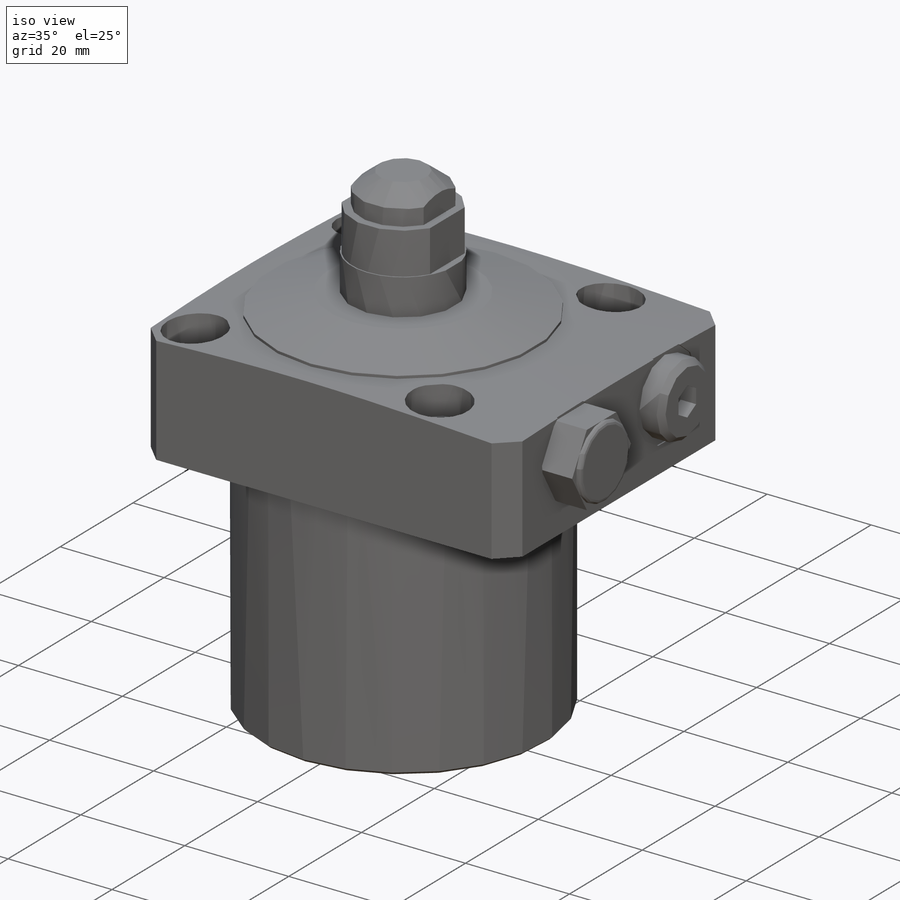
[diagram: iso view]
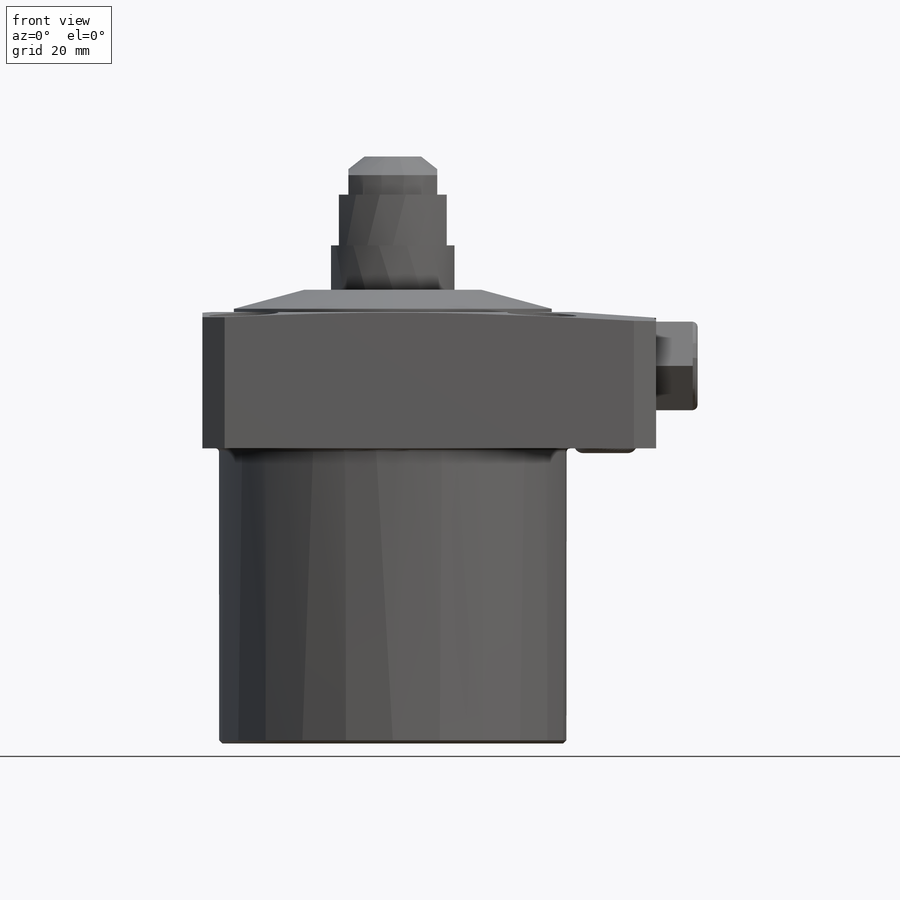
[diagram: front view]
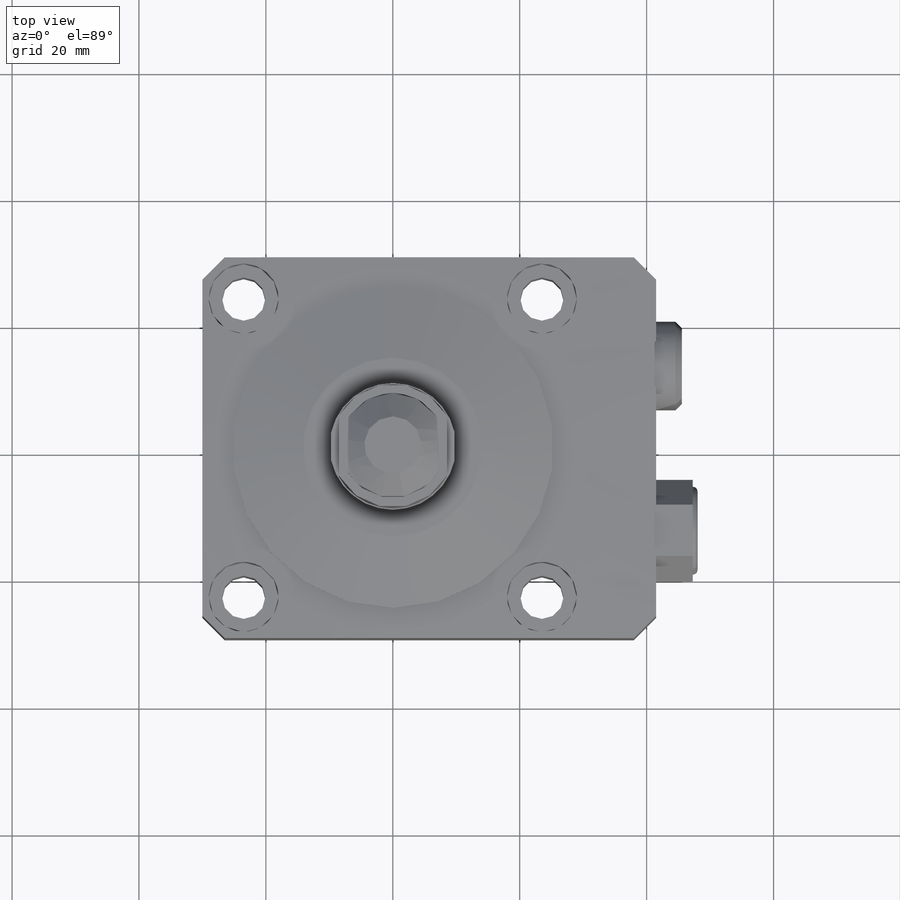
[diagram: top view]
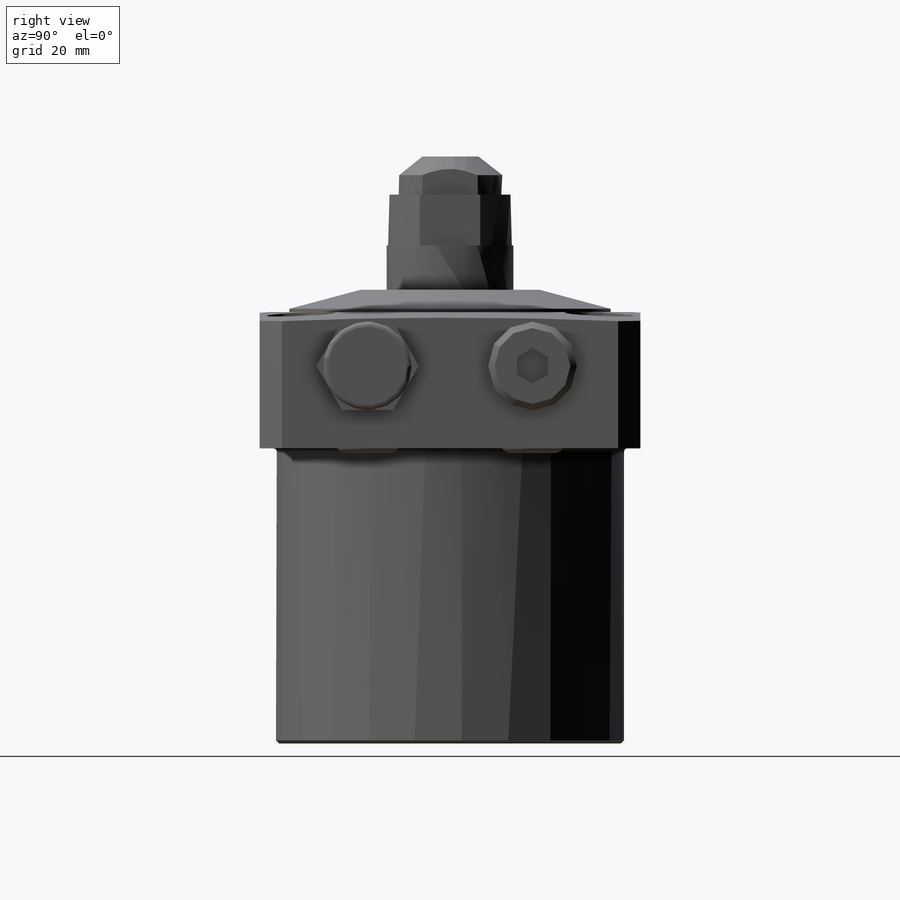
[diagram: right view]
SOLIDWORKS PART (.sldprt)
format: sldprt  version: not decoded by parser v0  size: 603,136 bytes
history: native  units: mm
features: sketch x16, revolve x5, cut_extrude x5, chamfer x3, cut_revolve x3, plane x2, pattern_linear x2, material x1, hole x1, pattern_circular x1, fillet x1, extrude x1 (+11 scaffold rows collapsed)
feature tree (52):
  scaffold x11  (default folders/planes/origin — collapsed)
  material  "Alloy Steel"
  sketch  "Sketch1"  dims[c1.D1=34.25mm c1.D2=9.4mm c1.D3=2.75mm c1.D4=34.0mm c1.D5=~3.996569mm c2.D5=45.0deg c2.D6=35.85mm c2.D7=68.0mm c2.D8=~11.557433mm c3.D8=4.0deg c3.D9=57.0mm c3.D10=54.85mm c3.D11=8.75mm c3.D12=33.75mm c3.D13=1.5mm c3.D2=46.5mm c3.D3=52.5mm]
  revolve  "Revolve1"  Angle=360deg
  sketch  "Sketch2"  dims[D1=60.0mm D2=30.0mm D3=71.5mm]
  cut_extrude  "Cut-Extrude1"  [1 undecoded]
  chamfer  "Chamfer2"  Distance=3.5mm Angle=45deg
  sketch  "Sketch4"  dims[c1.D1=104.0mm c1.D2=6.0mm c1.D3=16.5mm c1.D4=19.96mm c1.D5=19.5mm c1.D6=14.0mm c2.D1=90.0mm c2.D7=90.0deg c3.D1=46.0mm]
  revolve  "Revolve2"  Angle=360deg
  chamfer  "Chamfer1"  Distance=2.935mm Angle=51.98deg
  sketch  "Sketch5"  dims[D1=14.0mm]
  cut_extrude  "Cut-Extrude2"  [1 undecoded]
  sketch  "Sketch6"  dims[D1=17.0mm]
  cut_extrude  "Cut-Extrude3"  [1 undecoded]
  sketch  "Sketch10"  dims[D1=11.0mm D2=23.5mm D3=23.5mm]
  cut_extrude  "Cut-Extrude4"  Depth=16mm
  hole  "Ø5.5 (5.5) Diameter Hole1"  Diameter=6.8mm Depth=62.5mm
  sketch  "3DSketch1"
  sketch  "Sketch11"  dims[hole-wizard template sketch: 59 standard entries collapsed; hole parameters kept: c18.Thru Hole Dia.=6.8mm c18.Thru Hole Depth=62.5mm]
  pattern_circular  "CirPattern1"  Count=4 Angle=90deg
  plane  "Plane1"  Offset=13mm
  sketch  "Sketch12"  dims[c1.D1=10.5mm c1.D2=16.51mm c1.D3=0.25mm c1.D4=8.8392mm c1.D5=~5.962283mm c2.D5=59.0deg c2.D6=10.5664mm c2.D7=~1.28783mm c3.D7=45.0deg c3.D8=0.5334mm c3.D1=59.5mm]
  cut_revolve  "Cut-Revolve2"  Angle=360deg
  sketch  "Sketch13"  dims[c1.D1=4.31mm c1.D2=13.97mm c1.D3=~2.141823mm c2.D3=45.0deg c2.D4=1.015mm c2.D5=59.5mm]
  revolve  "Revolve3"  Angle=360deg
  sketch  "Sketch14"  dims[D1=4.851mm]
  cut_extrude  "Cut-Extrude5"  Depth=3mm
  sketch  "Sketch16"  dims[c1.D1=13.0mm c1.D2=5.0mm c1.D3=~3.993351mm c2.D3=~141.241392deg c3.D3=~3.993351mm c4.D3=59.0deg c4.D4=10.0mm c4.D5=2.25mm c4.D6=~0.959908mm c5.D6=45.0deg c5.D7=0.625mm c5.D8=9.75mm c5.D1=33.5mm]
  cut_revolve  "Cut-Revolve4"  Angle=360deg
  pattern_linear  "LPattern1"  Count1=2 Count2=1 Spacing1=26mm Spacing2=10mm
  sketch  "Sketch18"  dims[D1=3.0mm D2=~1.50001mm D3=6.998mm]
  revolve  "Revolve4"  Angle=360deg
  pattern_linear  "LPattern2"  Count1=2 Count2=1 Spacing1=26mm Spacing2=10mm
  chamfer  "Chamfer3"  Distance=0.5mm Angle=45deg
  fillet  "Fillet1"  Radius=0.5mm
  sketch  "Sketch19"  dims[c1.D1=25.31mm c1.D2=0.5mm c1.D3=~6.789587mm c2.D3=15.0deg c2.D4=3.5mm]
  revolve  "Revolve5"  Angle=360deg
  sketch  "Sketch20"  dims[D1=0.0mm]
  extrude  "Boss-Extrude1"  Depth=6.78mm
  plane  "Plane2"
  sketch  "Sketch21"  dims[D1=0.762mm D2=0.762mm]
  cut_revolve  "Cut-Revolve5"  Angle=360deg
decode coverage: 34 of 38 modeling features carry decoded parameters
note: ~ marks probable driven/reference dimensions
note: 3 parameter values undecoded
summary: no parameter record found for 3 features
note: suppression state not decoded; provenance and decode notes live in map.json
